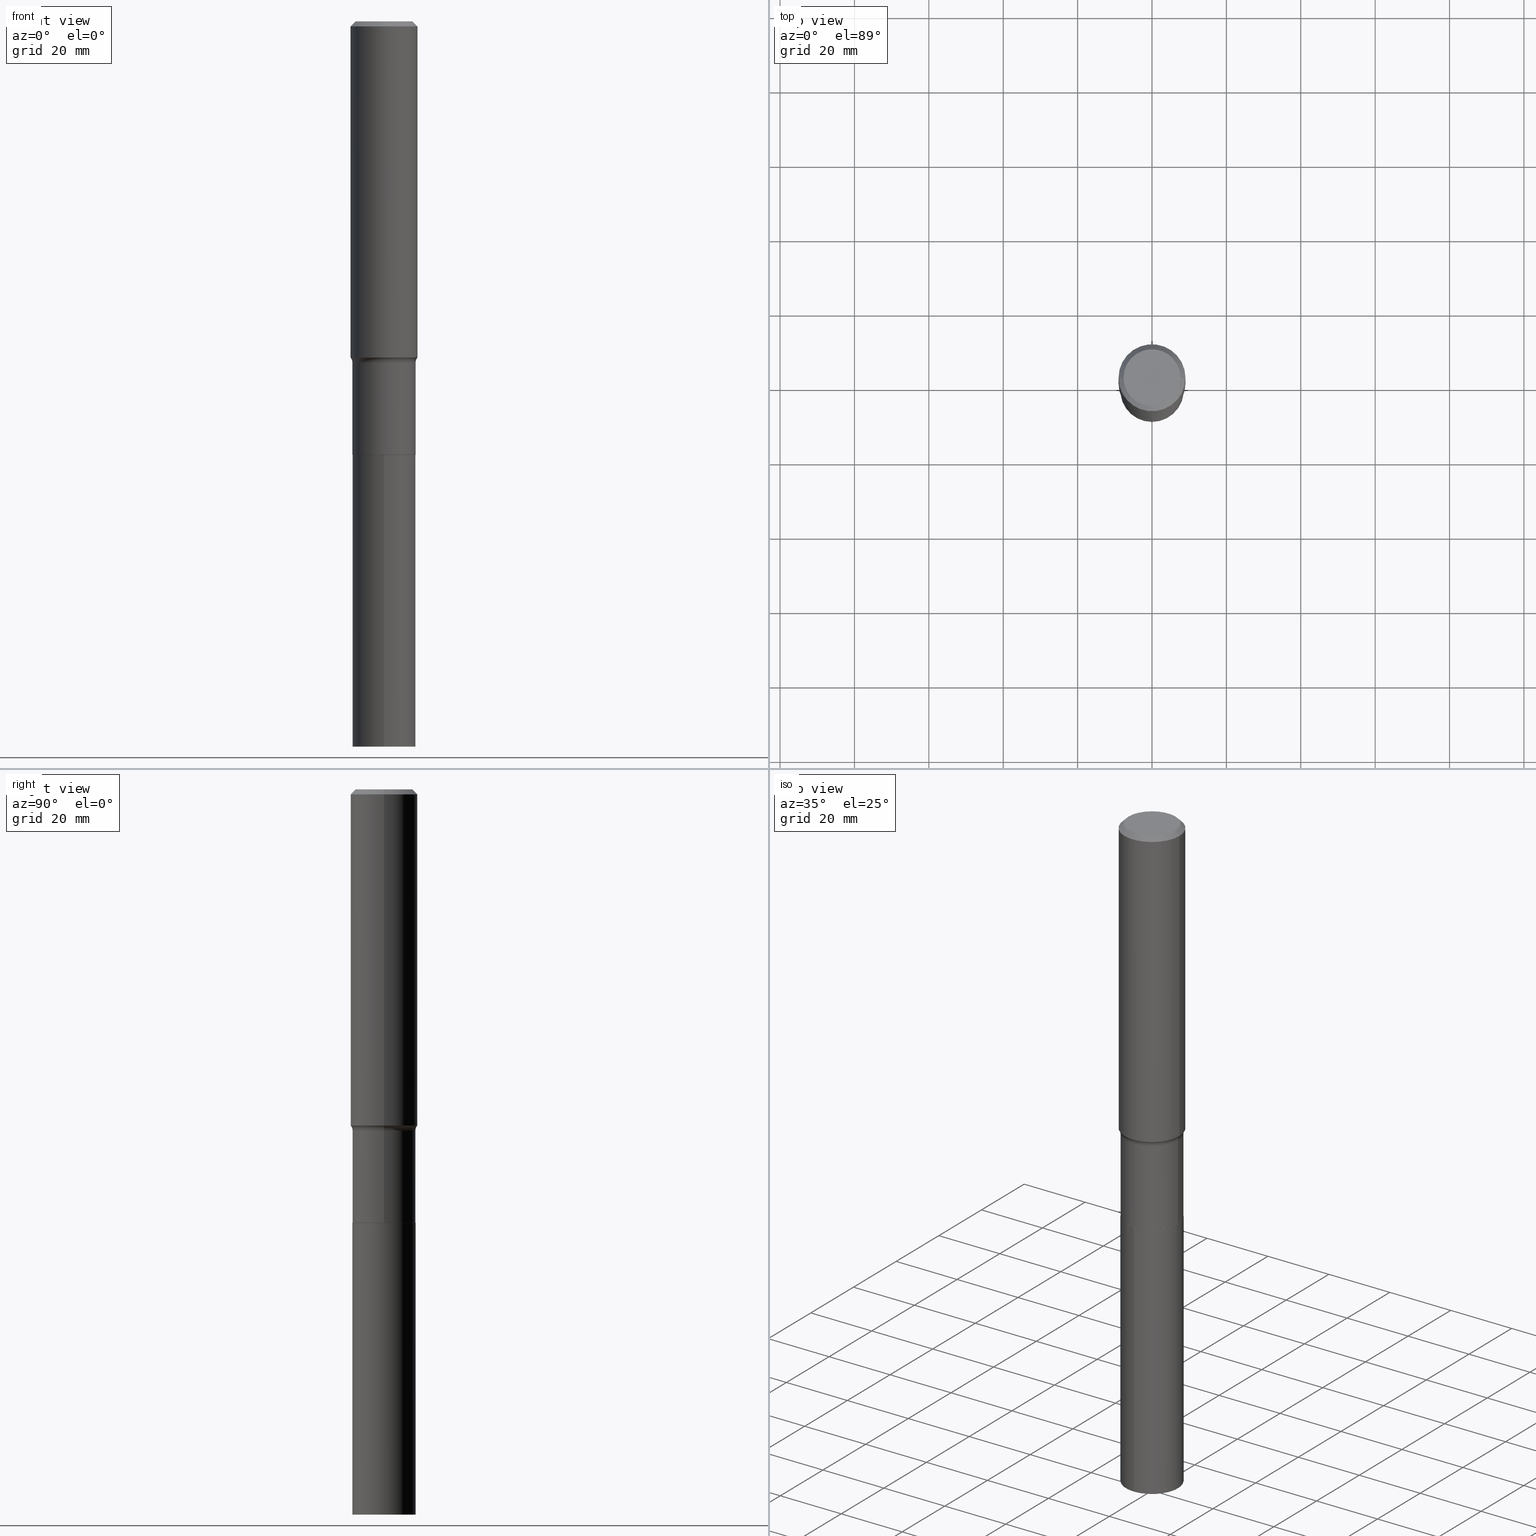
[diagram: canonical four-view strip — front | top / right | iso, engineering-drawing reading convention]
A machine part, canonical four-view strip (front | top / right | iso — engineering-drawing reading convention). The complete STEP part file that produces these views, byte-faithful:
ISO-10303-21;
HEADER;
FILE_DESCRIPTION (( 'STEP AP203' ),
    '1' );
FILE_NAME ('67919.STEP',
    '2024-04-19T17:05:45',
    ( '' ),
    ( '' ),
    'SwSTEP 2.0',
    'SolidWorks 2023',
    '' );
FILE_SCHEMA (( 'CONFIG_CONTROL_DESIGN' ));
ENDSEC;

DATA;
#1 = DIRECTION ( 'NONE',  ( 1.000000000000000000, -6.982962677686268288E-15, 0.000000000000000000 ) ) ;
#2 = EDGE_CURVE ( 'NONE', #334, #112, #97, .T. ) ;
#3 = CARTESIAN_POINT ( 'NONE',  ( 1.299827807207564022E-30, -1.855809618628616242E-16, -0.05315250000000037306 ) ) ;
#4 = AXIS2_PLACEMENT_3D ( 'NONE', #198, #269, #91 ) ;
#5 = AXIS2_PLACEMENT_3D ( 'NONE', #101, #180, #238 ) ;
#6 = PERSON_AND_ORGANIZATION ( #329, #51 ) ;
#7 = ORIENTED_EDGE ( 'NONE', *, *, #82, .F. ) ;
#8 = CARTESIAN_POINT ( 'NONE',  ( -5.014852121625167883E-47, 7.159879756154481060E-33, 2.050671065172242981E-18 ) ) ;
#9 = DATE_AND_TIME ( #194, #81 ) ;
#10 = CIRCLE ( 'NONE', #195, 0.3346500000000000585 ) ;
#11 =( CONVERSION_BASED_UNIT ( 'INCH', #305 ) LENGTH_UNIT ( ) NAMED_UNIT ( #140 ) );
#12 = AXIS2_PLACEMENT_3D ( 'NONE', #102, #242, #281 ) ;
#13 = EDGE_CURVE ( 'NONE', #107, #334, #457, .T. ) ;
#14 = ORIENTED_EDGE ( 'NONE', *, *, #379, .T. ) ;
#15 = APPROVAL_STATUS ( 'not_yet_approved' ) ;
#16 = EDGE_LOOP ( 'NONE', ( #224, #100, #86, #429 ) ) ;
#17 = CARTESIAN_POINT ( 'NONE',  ( 1.121785450773245711E-28, -1.601612319754127659E-14, -4.587199999999999278 ) ) ;
#18 = AXIS2_PLACEMENT_3D ( 'NONE', #225, #124, #113 ) ;
#19 = CARTESIAN_POINT ( 'NONE',  ( -0.3543500000000006644, -9.905675328687322554E-15, -3.558227098234926000 ) ) ;
#20 = DATE_TIME_ROLE ( 'creation_date' ) ;
#21 = CARTESIAN_POINT ( 'NONE',  ( 0.000000000000000000, 0.000000000000000000, 0.000000000000000000 ) ) ;
#22 = APPROVAL_ROLE ( '' ) ;
#23 = DIRECTION ( 'NONE',  ( 1.000000000000000000, -6.982962677686266711E-15, 4.876239486148337140E-29 ) ) ;
#24 = DIRECTION ( 'NONE',  ( 1.000000000000000000, -6.982962677686267499E-15, 0.000000000000000000 ) ) ;
#25 = DIRECTION ( 'NONE',  ( -2.445468806185136597E-29, 3.491481338843145583E-15, 1.000000000000000000 ) ) ;
#26 = EDGE_CURVE ( 'NONE', #300, #33, #145, .T. ) ;
#27 = APPLICATION_PROTOCOL_DEFINITION ( 'international standard', 'config_control_design', 1994, #332 ) ;
#28 = CARTESIAN_POINT ( 'NONE',  ( 0.3543499999999999983, -2.616598427373203868E-15, -0.05315250000000037306 ) ) ;
#29 = FACE_OUTER_BOUND ( 'NONE', #117, .T. ) ;
#30 = ORIENTED_EDGE ( 'NONE', *, *, #132, .F. ) ;
#31 = ADVANCED_FACE ( 'NONE', ( #380 ), #49, .F. ) ;
#32 = VECTOR ( 'NONE', #322, 39.37007874015748143 ) ;
#33 = VERTEX_POINT ( 'NONE', #99 ) ;
#34 = DIRECTION ( 'NONE',  ( -6.982962677686266711E-15, -1.000000000000000000, 3.265319580055895186E-15 ) ) ;
#35 = VERTEX_POINT ( 'NONE', #303 ) ;
#36 = CARTESIAN_POINT ( 'NONE',  ( -1.002970424325033577E-46, 1.431975951230896212E-32, 4.101342130344485961E-18 ) ) ;
#37 = ORIENTED_EDGE ( 'NONE', *, *, #430, .F. ) ;
#38 = ADVANCED_FACE ( 'NONE', ( #445 ), #236, .F. ) ;
#39 = ORIENTED_EDGE ( 'NONE', *, *, #13, .T. ) ;
#40 = CALENDAR_DATE ( 2024, 19, 4 ) ;
#41 = DIRECTION ( 'NONE',  ( 1.000000000000000000, -6.982962677686266711E-15, 4.876239486148337140E-29 ) ) ;
#42 = ORIENTED_EDGE ( 'NONE', *, *, #221, .T. ) ;
#43 = ADVANCED_FACE ( 'NONE', ( #200 ), #270, .T. ) ;
#44 = EDGE_LOOP ( 'NONE', ( #376, #348, #424, #50 ) ) ;
#45 = PRODUCT ( '67919', '67919', '', ( #460 ) ) ;
#46 = AXIS2_PLACEMENT_3D ( 'NONE', #106, #244, #393 ) ;
#47 = LOCAL_TIME ( 13, 5, 45.00000000000000000, #358 ) ;
#48 = PRODUCT_DEFINITION_SHAPE ( 'NONE', 'NONE',  #182 ) ;
#49 = PLANE ( 'NONE',  #134 ) ;
#50 = ORIENTED_EDGE ( 'NONE', *, *, #203, .F. ) ;
#51 = ORGANIZATION ( 'UNSPECIFIED', 'UNSPECIFIED', '' ) ;
#52 = EDGE_CURVE ( 'NONE', #147, #412, #312, .T. ) ;
#53 = AXIS2_PLACEMENT_3D ( 'NONE', #8, #411, #148 ) ;
#54 = LOCAL_TIME ( 13, 5, 45.00000000000000000, #232 ) ;
#55 = DIRECTION ( 'NONE',  ( -1.000000000000000000, 6.982962677686266711E-15, 0.000000000000000000 ) ) ;
#56 = ORIENTED_EDGE ( 'NONE', *, *, #247, .T. ) ;
#57 = SECURITY_CLASSIFICATION_LEVEL ( 'unclassified' ) ;
#58 = CARTESIAN_POINT ( 'NONE',  ( 0.3543500000000002759, -2.474412824838130666E-15, 1.727873240503291150E-29 ) ) ;
#59 = DIRECTION ( 'NONE',  ( -2.445468806185136597E-29, 3.491481338843145583E-15, 1.000000000000000000 ) ) ;
#60 = TOROIDAL_SURFACE ( 'NONE', #324, 0.4146499999999999631, 0.08000000000000027922 ) ;
#61 = CONICAL_SURFACE ( 'NONE', #326, 0.3341500000000000581, 0.7853981633973118326 ) ;
#62 = DESIGN_CONTEXT ( 'detailed design', #316, 'design' ) ;
#63 = CARTESIAN_POINT ( 'NONE',  ( -0.3543500000000002759, 2.517808184165916969E-15, -1.743024649231827187E-29 ) ) ;
#64 = EDGE_CURVE ( 'NONE', #412, #112, #354, .T. ) ;
#65 = LINE ( 'NONE', #28, #187 ) ;
#66 = CARTESIAN_POINT ( 'NONE',  ( 8.830098765373292000E-29, -1.260704081829483189E-14, -3.610800000000000232 ) ) ;
#67 = EDGE_CURVE ( 'NONE', #334, #188, #315, .T. ) ;
#68 = ORIENTED_EDGE ( 'NONE', *, *, #251, .T. ) ;
#69 = DIRECTION ( 'NONE',  ( -6.982962677686266711E-15, -1.000000000000000000, 3.265319580055895186E-15 ) ) ;
#70 = FACE_OUTER_BOUND ( 'NONE', #109, .T. ) ;
#71 = VECTOR ( 'NONE', #104, 39.37007874015748143 ) ;
#72 = CIRCLE ( 'NONE', #416, 0.3011975000000000069 ) ;
#73 = DIRECTION ( 'NONE',  ( -0.7071067811864509833, 7.493145998870005484E-15, 0.7071067811866440511 ) ) ;
#74 = CARTESIAN_POINT ( 'NONE',  ( 1.299827807207564022E-30, -1.855809618628616242E-16, -0.05315250000000037306 ) ) ;
#75 = ORIENTED_EDGE ( 'NONE', *, *, #149, .F. ) ;
#76 = APPROVAL ( #405, 'UNSPECIFIED' ) ;
#77 = DIRECTION ( 'NONE',  ( 7.105427357601001859E-15, 1.000000000000000000, -3.491481338843145583E-15 ) ) ;
#78 = CARTESIAN_POINT ( 'NONE',  ( 0.3346500000000000585, -1.835122591695956180E-14, -4.586699999999999555 ) ) ;
#79 = EDGE_LOOP ( 'NONE', ( #402, #185, #413, #371 ) ) ;
#80 = TOROIDAL_SURFACE ( 'NONE', #237, 0.4146499999999999631, 0.08000000000000027922 ) ;
#81 = LOCAL_TIME ( 13, 5, 45.00000000000000000, #343 ) ;
#82 = EDGE_CURVE ( 'NONE', #297, #35, #181, .T. ) ;
#83 = CARTESIAN_POINT ( 'NONE',  ( -2.336848460087597067E-15, -0.3346500000000160457, -4.587199999999998390 ) ) ;
#84 = PRODUCT_RELATED_PRODUCT_CATEGORY ( 'detail', '', ( #45 ) ) ;
#85 = CARTESIAN_POINT ( 'NONE',  ( 2.377831265221286917E-15, 0.3346499999999839603, -4.587200000000001054 ) ) ;
#86 = ORIENTED_EDGE ( 'NONE', *, *, #395, .F. ) ;
#87 = ORIENTED_EDGE ( 'NONE', *, *, #325, .F. ) ;
#88 = PERSON_AND_ORGANIZATION ( #329, #51 ) ;
#89 = AXIS2_PLACEMENT_3D ( 'NONE', #321, #461, #24 ) ;
#90 = CC_DESIGN_APPROVAL ( #76, ( #182 ) ) ;
#91 = DIRECTION ( 'NONE',  ( -6.982962677686266711E-15, -1.000000000000000000, 3.265319580055895186E-15 ) ) ;
#92 = EDGE_CURVE ( 'NONE', #184, #147, #386, .T. ) ;
#93 = PERSON_AND_ORGANIZATION_ROLE ( 'creator' ) ;
#94 = DIRECTION ( 'NONE',  ( -2.445011850154846230E-29, 3.492135725886842915E-15, 1.000000000000000000 ) ) ;
#95 =( NAMED_UNIT ( * ) PLANE_ANGLE_UNIT ( ) SI_UNIT ( $, .RADIAN. ) );
#96 = DIRECTION ( 'NONE',  ( -2.445468806185136597E-29, 3.491481338843145583E-15, 1.000000000000000000 ) ) ;
#97 = CIRCLE ( 'NONE', #308, 0.08000000000000030698 ) ;
#98 = ADVANCED_FACE ( 'NONE', ( #137 ), #202, .T. ) ;
#99 = CARTESIAN_POINT ( 'NONE',  ( 2.377831265221324783E-15, 0.3346499999999731911, -7.677200000000001801 ) ) ;
#100 = ORIENTED_EDGE ( 'NONE', *, *, #149, .T. ) ;
#101 = CARTESIAN_POINT ( 'NONE',  ( 0.000000000000000000, 0.000000000000000000, 0.000000000000000000 ) ) ;
#102 = CARTESIAN_POINT ( 'NONE',  ( 0.000000000000000000, 0.000000000000000000, 0.000000000000000000 ) ) ;
#103 = DIRECTION ( 'NONE',  ( -6.982962677686266711E-15, -1.000000000000000000, 3.265319580055895186E-15 ) ) ;
#104 = DIRECTION ( 'NONE',  ( 0.7071067811864509833, -2.468850131081245741E-15, 0.7071067811866440511 ) ) ;
#105 = APPROVAL ( #15, 'UNSPECIFIED' ) ;
#106 = CARTESIAN_POINT ( 'NONE',  ( 1.121785450773245711E-28, -1.601612319754127659E-14, -4.587199999999999278 ) ) ;
#107 = VERTEX_POINT ( 'NONE', #19 ) ;
#108 = LINE ( 'NONE', #143, #160 ) ;
#109 = EDGE_LOOP ( 'NONE', ( #229, #431 ) ) ;
#110 = APPROVAL_PERSON_ORGANIZATION ( #447, #105, #441 ) ;
#111 = CARTESIAN_POINT ( 'NONE',  ( -0.3543499999999999983, -3.786724053192132939E-15, -0.05315250000000037306 ) ) ;
#112 = VERTEX_POINT ( 'NONE', #397 ) ;
#113 = DIRECTION ( 'NONE',  ( 1.000000000000000000, -6.982962677686266711E-15, 0.000000000000000000 ) ) ;
#114 = ORIENTED_EDGE ( 'NONE', *, *, #307, .F. ) ;
#115 = DIRECTION ( 'NONE',  ( -2.445468806185136597E-29, 3.491481338843145583E-15, 1.000000000000000000 ) ) ;
#116 = VECTOR ( 'NONE', #172, 39.37007874015748143 ) ;
#117 = EDGE_LOOP ( 'NONE', ( #7, #367, #362, #114 ) ) ;
#118 = CC_DESIGN_PERSON_AND_ORGANIZATION_ASSIGNMENT ( #6, #153, ( #45 ) ) ;
#119 = PERSON_AND_ORGANIZATION ( #329, #51 ) ;
#120 = CARTESIAN_POINT ( 'NONE',  ( 1.121785450773245711E-28, -1.601612319754127659E-14, -4.587199999999999278 ) ) ;
#121 = CARTESIAN_POINT ( 'NONE',  ( 1.121785450773245711E-28, -1.601612319754127659E-14, -4.587199999999999278 ) ) ;
#122 = ORIENTED_EDGE ( 'NONE', *, *, #251, .F. ) ;
#123 = PERSON_AND_ORGANIZATION ( #329, #51 ) ;
#124 = DIRECTION ( 'NONE',  ( -2.445468806185136597E-29, 3.491481338843145583E-15, 1.000000000000000000 ) ) ;
#125 = DIRECTION ( 'NONE',  ( -6.982962677686266711E-15, -1.000000000000000000, 3.491481338843145583E-15 ) ) ;
#126 = VECTOR ( 'NONE', #73, 39.37007874015748143 ) ;
#127 = CALENDAR_DATE ( 2024, 19, 4 ) ;
#128 = VERTEX_POINT ( 'NONE', #111 ) ;
#129 = APPROVAL_DATE_TIME ( #266, #105 ) ;
#130 = DIRECTION ( 'NONE',  ( -2.445011850154846511E-29, 3.492135725886842915E-15, 1.000000000000000000 ) ) ;
#131 = CARTESIAN_POINT ( 'NONE',  ( 1.121785450773245711E-28, -1.601612319754127659E-14, -4.587199999999999278 ) ) ;
#132 = EDGE_CURVE ( 'NONE', #128, #188, #398, .T. ) ;
#133 = CALENDAR_DATE ( 2024, 19, 4 ) ;
#134 = AXIS2_PLACEMENT_3D ( 'NONE', #192, #94, #163 ) ;
#135 = VECTOR ( 'NONE', #407, 39.37007874015748143 ) ;
#136 = CARTESIAN_POINT ( 'NONE',  ( 0.3011975000000000069, -2.341481636528497322E-15, 4.101342130360026675E-18 ) ) ;
#137 = FACE_OUTER_BOUND ( 'NONE', #414, .T. ) ;
#138 = ORIENTED_EDGE ( 'NONE', *, *, #92, .T. ) ;
#139 = DIRECTION ( 'NONE',  ( -6.982962677686266711E-15, -1.000000000000000000, 3.265319580055895186E-15 ) ) ;
#140 = DIMENSIONAL_EXPONENTS ( 1.000000000000000000, 0.000000000000000000, 0.000000000000000000, 0.000000000000000000, 0.000000000000000000, 0.000000000000000000, 0.000000000000000000 ) ;
#141 = DIRECTION ( 'NONE',  ( -2.445468806185136597E-29, 3.491481338843145583E-15, 1.000000000000000000 ) ) ;
#142 = ADVANCED_FACE ( 'NONE', ( #444 ), #60, .F. ) ;
#143 = CARTESIAN_POINT ( 'NONE',  ( -0.3543499999999999983, 2.288831862975267218E-15, -0.05315250000000037306 ) ) ;
#144 = ORIENTED_EDGE ( 'NONE', *, *, #366, .F. ) ;
#145 = CIRCLE ( 'NONE', #4, 0.3346500000000000030 ) ;
#146 = EDGE_LOOP ( 'NONE', ( #400, #235, #365, #374 ) ) ;
#147 = VERTEX_POINT ( 'NONE', #279 ) ;
#148 = DIRECTION ( 'NONE',  ( -1.000000000000000000, 6.982962677686265922E-15, -4.876176775795935793E-29 ) ) ;
#149 = EDGE_CURVE ( 'NONE', #184, #297, #210, .T. ) ;
#150 = FACE_OUTER_BOUND ( 'NONE', #44, .T. ) ;
#151 = AXIS2_PLACEMENT_3D ( 'NONE', #131, #274, #103 ) ;
#152 = APPROVAL_PERSON_ORGANIZATION ( #119, #76, #155 ) ;
#153 = PERSON_AND_ORGANIZATION_ROLE ( 'design_owner' ) ;
#154 = CARTESIAN_POINT ( 'NONE',  ( 1.299827807207564022E-30, -1.855809618628616242E-16, -0.05315250000000037306 ) ) ;
#155 = APPROVAL_ROLE ( '' ) ;
#156 = DIRECTION ( 'NONE',  ( 1.000000000000000000, -6.982962677686257244E-15, 0.000000000000000000 ) ) ;
#157 = PERSON_AND_ORGANIZATION ( #329, #51 ) ;
#158 = ADVANCED_FACE ( 'NONE', ( #29 ), #183, .T. ) ;
#159 = DIRECTION ( 'NONE',  ( 1.000000000000000000, -6.982962677686267499E-15, 0.000000000000000000 ) ) ;
#160 = VECTOR ( 'NONE', #283, 39.37007874015748143 ) ;
#161 = UNCERTAINTY_MEASURE_WITH_UNIT (LENGTH_MEASURE( 1.000000000000000082E-05 ), #11, 'distance_accuracy_value', 'NONE');
#162 =( LENGTH_UNIT ( ) NAMED_UNIT ( * ) SI_UNIT ( $, .METRE. ) );
#163 = DIRECTION ( 'NONE',  ( -6.982962677686265922E-15, -1.000000000000000000, 3.492135725886842915E-15 ) ) ;
#164 = PERSON_AND_ORGANIZATION_ROLE ( 'creator' ) ;
#165 = ORIENTED_EDGE ( 'NONE', *, *, #311, .T. ) ;
#166 = VECTOR ( 'NONE', #174, 39.37007874015748143 ) ;
#167 = DIRECTION ( 'NONE',  ( 1.000000000000000000, -6.982962677686266711E-15, 4.876176775795935232E-29 ) ) ;
#168 = ADVANCED_FACE ( 'NONE', ( #364 ), #273, .T. ) ;
#169 = LINE ( 'NONE', #422, #189 ) ;
#170 = ORIENTED_EDGE ( 'NONE', *, *, #52, .T. ) ;
#171 = CC_DESIGN_DATE_AND_TIME_ASSIGNMENT ( #427, #20, ( #182 ) ) ;
#172 = DIRECTION ( 'NONE',  ( -2.445468806185136877E-29, 3.491481338843145188E-15, 1.000000000000000000 ) ) ;
#173 = EDGE_LOOP ( 'NONE', ( #368, #122 ) ) ;
#174 = DIRECTION ( 'NONE',  ( -2.445468806185136877E-29, 3.491481338843145188E-15, 1.000000000000000000 ) ) ;
#175 = AXIS2_PLACEMENT_3D ( 'NONE', #17, #449, #239 ) ;
#176 = CIRCLE ( 'NONE', #46, 0.3341500000000000581 ) ;
#177 = APPROVAL_PERSON_ORGANIZATION ( #207, #272, #22 ) ;
#178 = DIRECTION ( 'NONE',  ( 1.000000000000000000, -6.982962677686266711E-15, 4.876176775795935793E-29 ) ) ;
#179 = ORIENTED_EDGE ( 'NONE', *, *, #2, .T. ) ;
#180 = DIRECTION ( 'NONE',  ( -2.445468806185136597E-29, 3.491481338843145583E-15, 1.000000000000000000 ) ) ;
#181 = LINE ( 'NONE', #209, #32 ) ;
#182 = PRODUCT_DEFINITION ( 'UNKNOWN', '', #455, #62 ) ;
#183 = CYLINDRICAL_SURFACE ( 'NONE', #5, 0.3346500000000000030 ) ;
#184 = VERTEX_POINT ( 'NONE', #205 ) ;
#185 = ORIENTED_EDGE ( 'NONE', *, *, #260, .T. ) ;
#186 = DIRECTION ( 'NONE',  ( 1.000000000000000000, -6.982962677686260400E-15, 0.000000000000000000 ) ) ;
#187 = VECTOR ( 'NONE', #360, 39.37007874015748143 ) ;
#188 = VERTEX_POINT ( 'NONE', #246 ) ;
#189 = VECTOR ( 'NONE', #359, 39.37007874015748143 ) ;
#190 = DIRECTION ( 'NONE',  ( 2.445468806185136597E-29, -3.491481338843145583E-15, -1.000000000000000000 ) ) ;
#191 = FACE_OUTER_BOUND ( 'NONE', #259, .T. ) ;
#192 = CARTESIAN_POINT ( 'NONE',  ( 1.269105113841984692E-29, -5.187331201457171325E-14, -7.677200000000000024 ) ) ;
#193 = DIRECTION ( 'NONE',  ( -2.445468806185136597E-29, 3.491481338843145583E-15, 1.000000000000000000 ) ) ;
#194 = CALENDAR_DATE ( 2024, 19, 4 ) ;
#195 = AXIS2_PLACEMENT_3D ( 'NONE', #373, #294, #186 ) ;
#196 =( NAMED_UNIT ( * ) SI_UNIT ( $, .STERADIAN. ) SOLID_ANGLE_UNIT ( ) );
#197 = ADVANCED_FACE ( 'NONE', ( #216 ), #353, .T. ) ;
#198 = CARTESIAN_POINT ( 'NONE',  ( 1.877294112471093456E-28, -2.680682259053162671E-14, -7.677200000000000912 ) ) ;
#199 = CARTESIAN_POINT ( 'NONE',  ( 2.377831265221363042E-15, 0.3346499999999839603, -4.587200000000001054 ) ) ;
#200 = FACE_OUTER_BOUND ( 'NONE', #16, .T. ) ;
#201 = DIRECTION ( 'NONE',  ( -6.982962677686266711E-15, -1.000000000000000000, 3.265319580055895186E-15 ) ) ;
#202 = CYLINDRICAL_SURFACE ( 'NONE', #409, 0.3543500000000002759 ) ;
#203 = EDGE_CURVE ( 'NONE', #300, #252, #169, .T. ) ;
#204 = CONICAL_SURFACE ( 'NONE', #463, 0.3543499999999999983, 0.7853981633974447263 ) ;
#205 = CARTESIAN_POINT ( 'NONE',  ( -0.3341500000000000581, -1.363919541882479020E-14, -4.587199999999999278 ) ) ;
#206 = CARTESIAN_POINT ( 'NONE',  ( 0.3341500000000000581, -1.834948017629014266E-14, -4.587199999999999278 ) ) ;
#207 = PERSON_AND_ORGANIZATION ( #329, #51 ) ;
#208 = CARTESIAN_POINT ( 'NONE',  ( -1.002970424325033577E-46, 1.431975951230896212E-32, 4.101342130344485961E-18 ) ) ;
#209 = CARTESIAN_POINT ( 'NONE',  ( -0.3346500000000000030, 2.377831265221175293E-15, -1.646121627953804231E-29 ) ) ;
#210 = LINE ( 'NONE', #419, #126 ) ;
#211 = ORIENTED_EDGE ( 'NONE', *, *, #384, .F. ) ;
#212 = EDGE_CURVE ( 'NONE', #112, #35, #399, .T. ) ;
#213 = CARTESIAN_POINT ( 'NONE',  ( 0.3543500000000006644, -1.489789633769137492E-14, -3.558227098234926000 ) ) ;
#214 = CARTESIAN_POINT ( 'NONE',  ( 1.121785450773245711E-28, -1.601612319754127659E-14, -4.587199999999999278 ) ) ;
#215 = EDGE_LOOP ( 'NONE', ( #211, #408, #14, #144 ) ) ;
#216 = FACE_OUTER_BOUND ( 'NONE', #253, .T. ) ;
#217 = CLOSED_SHELL ( 'NONE', ( #43, #278, #98, #357, #197, #158, #142, #168, #415, #434, #372, #459 ) ) ;
#218 = AXIS2_PLACEMENT_3D ( 'NONE', #21, #394, #167 ) ;
#219 = EDGE_LOOP ( 'NONE', ( #439, #39, #299, #30 ) ) ;
#220 = ORIENTED_EDGE ( 'NONE', *, *, #64, .F. ) ;
#221 = EDGE_CURVE ( 'NONE', #107, #128, #391, .T. ) ;
#222 = CARTESIAN_POINT ( 'NONE',  ( 1.121785450773245711E-28, -1.601612319754127659E-14, -4.587199999999999278 ) ) ;
#223 =( GEOMETRIC_REPRESENTATION_CONTEXT ( 3 ) GLOBAL_UNCERTAINTY_ASSIGNED_CONTEXT ( ( #161 ) ) GLOBAL_UNIT_ASSIGNED_CONTEXT ( ( #11, #95, #196 ) ) REPRESENTATION_CONTEXT ( 'NONE', 'WORKASPACE' ) );
#224 = ORIENTED_EDGE ( 'NONE', *, *, #349, .T. ) ;
#225 = CARTESIAN_POINT ( 'NONE',  ( 1.299827807207564022E-30, -1.855809618628616242E-16, -0.05315250000000037306 ) ) ;
#226 = CARTESIAN_POINT ( 'NONE',  ( -0.4146499999999999631, -9.660775364465576730E-15, -3.610800000000000232 ) ) ;
#227 = COORDINATED_UNIVERSAL_TIME_OFFSET ( 5, 0, .BEHIND. ) ;
#228 = EDGE_CURVE ( 'NONE', #280, #252, #458, .T. ) ;
#229 = ORIENTED_EDGE ( 'NONE', *, *, #349, .F. ) ;
#230 = CC_DESIGN_DATE_AND_TIME_ASSIGNMENT ( #9, #442, ( #254 ) ) ;
#231 = CONICAL_SURFACE ( 'NONE', #257, 0.3543499999999999983, 0.7853981633974447263 ) ;
#232 = COORDINATED_UNIVERSAL_TIME_OFFSET ( 5, 0, .BEHIND. ) ;
#233 = CARTESIAN_POINT ( 'NONE',  ( -0.3346500000000000585, -1.193287787236216859E-14, -4.586699999999999555 ) ) ;
#234 = DIRECTION ( 'NONE',  ( 1.000000000000000000, -6.982962677686265922E-15, 4.876176775795935793E-29 ) ) ;
#235 = ORIENTED_EDGE ( 'NONE', *, *, #247, .F. ) ;
#236 = PLANE ( 'NONE',  #255 ) ;
#237 = AXIS2_PLACEMENT_3D ( 'NONE', #319, #141, #425 ) ;
#238 = DIRECTION ( 'NONE',  ( 1.000000000000000000, -6.982962677686266711E-15, 4.876176775795935232E-29 ) ) ;
#239 = DIRECTION ( 'NONE',  ( 1.000000000000000000, -6.982962677686268288E-15, 0.000000000000000000 ) ) ;
#240 = CC_DESIGN_PERSON_AND_ORGANIZATION_ASSIGNMENT ( #88, #301, ( #254 ) ) ;
#241 = DIRECTION ( 'NONE',  ( 1.000000000000000000, -6.982962677686266711E-15, 4.876176775795935793E-29 ) ) ;
#242 = DIRECTION ( 'NONE',  ( 0.000000000000000000, 0.000000000000000000, 1.000000000000000000 ) ) ;
#243 = CARTESIAN_POINT ( 'NONE',  ( 0.000000000000000000, 0.000000000000000000, 0.000000000000000000 ) ) ;
#244 = DIRECTION ( 'NONE',  ( -2.445468806185136597E-29, 3.491481338843145583E-15, 1.000000000000000000 ) ) ;
#245 = CARTESIAN_POINT ( 'NONE',  ( 0.000000000000000000, 0.000000000000000000, 0.000000000000000000 ) ) ;
#246 = CARTESIAN_POINT ( 'NONE',  ( 0.3543499999999999983, -2.659993786700990170E-15, -0.05315250000000037306 ) ) ;
#247 = EDGE_CURVE ( 'NONE', #275, #327, #72, .T. ) ;
#248 = DIRECTION ( 'NONE',  ( -2.445468806185136877E-29, 3.491481338843145188E-15, 1.000000000000000000 ) ) ;
#249 = AXIS2_PLACEMENT_3D ( 'NONE', #243, #59, #241 ) ;
#250 = LOCAL_TIME ( 13, 5, 45.00000000000000000, #227 ) ;
#251 = EDGE_CURVE ( 'NONE', #33, #300, #340, .T. ) ;
#252 = VERTEX_POINT ( 'NONE', #83 ) ;
#253 = EDGE_LOOP ( 'NONE', ( #423, #287, #465, #220 ) ) ;
#254 = SECURITY_CLASSIFICATION ( '', '', #57 ) ;
#255 = AXIS2_PLACEMENT_3D ( 'NONE', #382, #306, #446 ) ;
#256 = FACE_OUTER_BOUND ( 'NONE', #418, .T. ) ;
#257 = AXIS2_PLACEMENT_3D ( 'NONE', #3, #190, #55 ) ;
#258 = LOCAL_TIME ( 13, 5, 45.00000000000000000, #453 ) ;
#259 = EDGE_LOOP ( 'NONE', ( #56, #370 ) ) ;
#260 = EDGE_CURVE ( 'NONE', #107, #35, #271, .T. ) ;
#261 = DIRECTION ( 'NONE',  ( -2.445011850154846511E-29, 3.492135725886842915E-15, 1.000000000000000000 ) ) ;
#262 = APPLICATION_PROTOCOL_DEFINITION ( 'international standard', 'config_control_design', 1994, #316 ) ;
#263 = CC_DESIGN_PERSON_AND_ORGANIZATION_ASSIGNMENT ( #157, #383, ( #455 ) ) ;
#264 = CARTESIAN_POINT ( 'NONE',  ( 1.121663177332936431E-28, -1.601437745687185429E-14, -4.586699999999999555 ) ) ;
#265 = DIRECTION ( 'NONE',  ( -2.438088387897960049E-29, 3.491481338843145188E-15, 1.000000000000000000 ) ) ;
#266 = DATE_AND_TIME ( #127, #54 ) ;
#267 = CARTESIAN_POINT ( 'NONE',  ( -2.336848460087521336E-15, -0.3346500000000268704, -7.677200000000000024 ) ) ;
#268 = APPROVAL_DATE_TIME ( #337, #76 ) ;
#269 = DIRECTION ( 'NONE',  ( -2.445011850154846511E-29, 3.492135725886842915E-15, 1.000000000000000000 ) ) ;
#270 = CONICAL_SURFACE ( 'NONE', #175, 0.3341500000000000581, 0.7853981633973118326 ) ;
#271 = CIRCLE ( 'NONE', #426, 0.08000000000000030698 ) ;
#272 = APPROVAL ( #355, 'UNSPECIFIED' ) ;
#273 = CYLINDRICAL_SURFACE ( 'NONE', #249, 0.3543500000000002759 ) ;
#274 = DIRECTION ( 'NONE',  ( -2.445011850154846511E-29, 3.492135725886842915E-15, 1.000000000000000000 ) ) ;
#275 = VERTEX_POINT ( 'NONE', #466 ) ;
#276 = AXIS2_PLACEMENT_3D ( 'NONE', #417, #96, #159 ) ;
#277 = ORIENTED_EDGE ( 'NONE', *, *, #379, .F. ) ;
#278 = ADVANCED_FACE ( 'NONE', ( #336 ), #231, .T. ) ;
#279 = CARTESIAN_POINT ( 'NONE',  ( 0.3341500000000000581, -1.834948017629014266E-14, -4.587199999999999278 ) ) ;
#280 = VERTEX_POINT ( 'NONE', #199 ) ;
#281 = DIRECTION ( 'NONE',  ( 1.000000000000000000, 0.000000000000000000, 0.000000000000000000 ) ) ;
#282 = ORIENTED_EDGE ( 'NONE', *, *, #212, .T. ) ;
#283 = DIRECTION ( 'NONE',  ( -0.7071067811865450192, 2.468850131082230634E-15, -0.7071067811865500152 ) ) ;
#284 = CALENDAR_DATE ( 2024, 19, 4 ) ;
#285 = CIRCLE ( 'NONE', #302, 0.3011975000000000069 ) ;
#286 = DIRECTION ( 'NONE',  ( -2.445468806185136597E-29, 3.491481338843145583E-15, 1.000000000000000000 ) ) ;
#287 = ORIENTED_EDGE ( 'NONE', *, *, #82, .T. ) ;
#288 = PLANE ( 'NONE',  #318 ) ;
#289 = CC_DESIGN_PERSON_AND_ORGANIZATION_ASSIGNMENT ( #123, #164, ( #455 ) ) ;
#290 = EDGE_LOOP ( 'NONE', ( #331, #87, #179, #282 ) ) ;
#291 = MANIFOLD_SOLID_BREP ( 'Body-Move/Copy2[2]', #217 ) ;
#292 = FACE_OUTER_BOUND ( 'NONE', #328, .T. ) ;
#293 = ADVANCED_BREP_SHAPE_REPRESENTATION ( '67919', ( #450, #291, #12 ), #223 ) ;
#294 = DIRECTION ( 'NONE',  ( -2.445468806185136597E-29, 3.491481338843145583E-15, 1.000000000000000000 ) ) ;
#295 = AXIS2_PLACEMENT_3D ( 'NONE', #452, #130, #69 ) ;
#296 = CC_DESIGN_SECURITY_CLASSIFICATION ( #254, ( #455 ) ) ;
#297 = VERTEX_POINT ( 'NONE', #233 ) ;
#298 = DIRECTION ( 'NONE',  ( -1.000000000000000000, 7.105427357600995548E-15, 0.000000000000000000 ) ) ;
#299 = ORIENTED_EDGE ( 'NONE', *, *, #67, .T. ) ;
#300 = VERTEX_POINT ( 'NONE', #267 ) ;
#301 = PERSON_AND_ORGANIZATION_ROLE ( 'classification_officer' ) ;
#302 = AXIS2_PLACEMENT_3D ( 'NONE', #36, #330, #41 ) ;
#303 = CARTESIAN_POINT ( 'NONE',  ( -0.3346499999999999475, -1.193287787236216859E-14, -3.610800000000000232 ) ) ;
#304 = SHAPE_DEFINITION_REPRESENTATION ( #48, #293 ) ;
#305 = LENGTH_MEASURE_WITH_UNIT ( LENGTH_MEASURE( 0.02539999999999999897 ), #162 );
#306 = DIRECTION ( 'NONE',  ( 2.445011850154846230E-29, -3.492135725886842915E-15, -1.000000000000000000 ) ) ;
#307 = EDGE_CURVE ( 'NONE', #35, #112, #363, .T. ) ;
#308 = AXIS2_PLACEMENT_3D ( 'NONE', #342, #125, #156 ) ;
#309 = CIRCLE ( 'NONE', #18, 0.3543499999999999983 ) ;
#310 = CC_DESIGN_APPROVAL ( #272, ( #455 ) ) ;
#311 = EDGE_CURVE ( 'NONE', #252, #280, #381, .T. ) ;
#312 = LINE ( 'NONE', #206, #71 ) ;
#313 = DIRECTION ( 'NONE',  ( -2.445468806185136597E-29, 3.491481338843145583E-15, 1.000000000000000000 ) ) ;
#314 = DIRECTION ( 'NONE',  ( 1.000000000000000000, -6.982962677686262766E-15, 0.000000000000000000 ) ) ;
#315 = LINE ( 'NONE', #58, #435 ) ;
#316 = APPLICATION_CONTEXT ( 'configuration controlled 3d designs of mechanical parts and assemblies' ) ;
#317 = CARTESIAN_POINT ( 'NONE',  ( 1.877294112471093456E-28, -2.680682259053162671E-14, -7.677200000000000912 ) ) ;
#318 = AXIS2_PLACEMENT_3D ( 'NONE', #121, #265, #234 ) ;
#319 = CARTESIAN_POINT ( 'NONE',  ( 8.830098765373292000E-29, -1.260704081829483189E-14, -3.610800000000000232 ) ) ;
#320 = DIRECTION ( 'NONE',  ( 1.000000000000000000, -6.982962677686262766E-15, 0.000000000000000000 ) ) ;
#321 = CARTESIAN_POINT ( 'NONE',  ( 8.701533374056167494E-29, -1.242348351285324031E-14, -3.558227098234926000 ) ) ;
#322 = DIRECTION ( 'NONE',  ( -2.445468806185136877E-29, 3.491481338843145188E-15, 1.000000000000000000 ) ) ;
#323 = EDGE_CURVE ( 'NONE', #327, #188, #65, .T. ) ;
#324 = AXIS2_PLACEMENT_3D ( 'NONE', #389, #385, #420 ) ;
#325 = EDGE_CURVE ( 'NONE', #334, #107, #448, .T. ) ;
#326 = AXIS2_PLACEMENT_3D ( 'NONE', #432, #115, #1 ) ;
#327 = VERTEX_POINT ( 'NONE', #136 ) ;
#328 = EDGE_LOOP ( 'NONE', ( #75, #138, #170, #37 ) ) ;
#329 = PERSON ( 'UNSPECIFIED', 'UNSPECIFIED', 'UNSPECIFIED', ('UNSPECIFIED'), ('UNSPECIFIED'), ('UNSPECIFIED') ) ;
#330 = DIRECTION ( 'NONE',  ( -2.445468806185136597E-29, 3.491481338843145583E-15, 1.000000000000000000 ) ) ;
#331 = ORIENTED_EDGE ( 'NONE', *, *, #260, .F. ) ;
#332 = APPLICATION_CONTEXT ( 'configuration controlled 3d designs of mechanical parts and assemblies' ) ;
#333 = CYLINDRICAL_SURFACE ( 'NONE', #369, 0.3346500000000000030 ) ;
#334 = VERTEX_POINT ( 'NONE', #213 ) ;
#335 = CC_DESIGN_PERSON_AND_ORGANIZATION_ASSIGNMENT ( #443, #93, ( #182 ) ) ;
#336 = FACE_OUTER_BOUND ( 'NONE', #215, .T. ) ;
#337 = DATE_AND_TIME ( #40, #250 ) ;
#338 = AXIS2_PLACEMENT_3D ( 'NONE', #214, #25, #456 ) ;
#339 = DIRECTION ( 'NONE',  ( -2.445468806185136597E-29, 3.491481338843145583E-15, 1.000000000000000000 ) ) ;
#340 = CIRCLE ( 'NONE', #345, 0.3346500000000000030 ) ;
#341 = FACE_OUTER_BOUND ( 'NONE', #146, .T. ) ;
#342 = CARTESIAN_POINT ( 'NONE',  ( 0.4146499999999999631, -1.550252629259744263E-14, -3.610800000000000232 ) ) ;
#343 = COORDINATED_UNIVERSAL_TIME_OFFSET ( 5, 0, .BEHIND. ) ;
#344 = DIRECTION ( 'NONE',  ( 1.000000000000000000, -6.982962677686266711E-15, 0.000000000000000000 ) ) ;
#345 = AXIS2_PLACEMENT_3D ( 'NONE', #317, #454, #139 ) ;
#346 = APPROVAL_DATE_TIME ( #421, #272 ) ;
#347 = CARTESIAN_POINT ( 'NONE',  ( 8.830098765373292000E-29, -1.260704081829483189E-14, -3.610800000000000232 ) ) ;
#348 = ORIENTED_EDGE ( 'NONE', *, *, #388, .T. ) ;
#349 = EDGE_CURVE ( 'NONE', #147, #184, #176, .T. ) ;
#350 = CLOSED_SHELL ( 'NONE', ( #464, #31, #451, #38 ) ) ;
#351 = AXIS2_PLACEMENT_3D ( 'NONE', #264, #339, #401 ) ;
#352 = CC_DESIGN_APPROVAL ( #105, ( #254 ) ) ;
#353 = CYLINDRICAL_SURFACE ( 'NONE', #218, 0.3346500000000000030 ) ;
#354 = LINE ( 'NONE', #390, #116 ) ;
#355 = APPROVAL_STATUS ( 'not_yet_approved' ) ;
#356 = DIRECTION ( 'NONE',  ( -2.445468806185136597E-29, 3.491481338843145583E-15, 1.000000000000000000 ) ) ;
#357 = ADVANCED_FACE ( 'NONE', ( #396 ), #80, .F. ) ;
#358 = COORDINATED_UNIVERSAL_TIME_OFFSET ( 5, 0, .BEHIND. ) ;
#359 = DIRECTION ( 'NONE',  ( -2.445011850154846511E-29, 3.492135725886842915E-15, 1.000000000000000000 ) ) ;
#360 = DIRECTION ( 'NONE',  ( 0.7071067811865450192, -7.319954787623246579E-15, -0.7071067811865500152 ) ) ;
#361 = DIRECTION ( 'NONE',  ( -2.445468806185136597E-29, 3.491481338843145583E-15, 1.000000000000000000 ) ) ;
#362 = ORIENTED_EDGE ( 'NONE', *, *, #64, .T. ) ;
#363 = CIRCLE ( 'NONE', #410, 0.3346499999999999475 ) ;
#364 = FACE_OUTER_BOUND ( 'NONE', #219, .T. ) ;
#365 = ORIENTED_EDGE ( 'NONE', *, *, #366, .T. ) ;
#366 = EDGE_CURVE ( 'NONE', #275, #128, #108, .T. ) ;
#367 = ORIENTED_EDGE ( 'NONE', *, *, #430, .T. ) ;
#368 = ORIENTED_EDGE ( 'NONE', *, *, #26, .F. ) ;
#369 = AXIS2_PLACEMENT_3D ( 'NONE', #222, #404, #34 ) ;
#370 = ORIENTED_EDGE ( 'NONE', *, *, #384, .T. ) ;
#371 = ORIENTED_EDGE ( 'NONE', *, *, #2, .F. ) ;
#372 = ADVANCED_FACE ( 'NONE', ( #70 ), #288, .F. ) ;
#373 = CARTESIAN_POINT ( 'NONE',  ( 1.121663177332936431E-28, -1.601437745687185429E-14, -4.586699999999999555 ) ) ;
#374 = ORIENTED_EDGE ( 'NONE', *, *, #132, .T. ) ;
#375 = LINE ( 'NONE', #85, #135 ) ;
#376 = ORIENTED_EDGE ( 'NONE', *, *, #26, .T. ) ;
#377 = DIRECTION ( 'NONE',  ( -1.000000000000000000, 6.982962677686266711E-15, 0.000000000000000000 ) ) ;
#378 = ORIENTED_EDGE ( 'NONE', *, *, #388, .F. ) ;
#379 = EDGE_CURVE ( 'NONE', #188, #128, #309, .T. ) ;
#380 = FACE_OUTER_BOUND ( 'NONE', #173, .T. ) ;
#381 = CIRCLE ( 'NONE', #151, 0.3346500000000000030 ) ;
#382 = CARTESIAN_POINT ( 'NONE',  ( 1.121785450773245711E-28, -1.601612319754127659E-14, -4.587199999999999278 ) ) ;
#383 = PERSON_AND_ORGANIZATION_ROLE ( 'design_supplier' ) ;
#384 = EDGE_CURVE ( 'NONE', #327, #275, #285, .T. ) ;
#385 = DIRECTION ( 'NONE',  ( -2.445468806185136597E-29, 3.491481338843145583E-15, 1.000000000000000000 ) ) ;
#386 = CIRCLE ( 'NONE', #338, 0.3341500000000000581 ) ;
#387 = AXIS2_PLACEMENT_3D ( 'NONE', #120, #261, #201 ) ;
#388 = EDGE_CURVE ( 'NONE', #33, #280, #375, .T. ) ;
#389 = CARTESIAN_POINT ( 'NONE',  ( 8.830098765373292000E-29, -1.260704081829483189E-14, -3.610800000000000232 ) ) ;
#390 = CARTESIAN_POINT ( 'NONE',  ( 0.3346500000000000030, -2.336848460087709085E-15, 1.631812558020109799E-29 ) ) ;
#391 = LINE ( 'NONE', #63, #166 ) ;
#392 = ORIENTED_EDGE ( 'NONE', *, *, #228, .T. ) ;
#393 = DIRECTION ( 'NONE',  ( 1.000000000000000000, -6.982962677686268288E-15, 0.000000000000000000 ) ) ;
#394 = DIRECTION ( 'NONE',  ( -2.445468806185136597E-29, 3.491481338843145583E-15, 1.000000000000000000 ) ) ;
#395 = EDGE_CURVE ( 'NONE', #412, #297, #403, .T. ) ;
#396 = FACE_OUTER_BOUND ( 'NONE', #79, .T. ) ;
#397 = CARTESIAN_POINT ( 'NONE',  ( 0.3346499999999999475, -1.494388927838253940E-14, -3.610800000000000232 ) ) ;
#398 = CIRCLE ( 'NONE', #462, 0.3543499999999999983 ) ;
#399 = CIRCLE ( 'NONE', #436, 0.3346499999999999475 ) ;
#400 = ORIENTED_EDGE ( 'NONE', *, *, #323, .F. ) ;
#401 = DIRECTION ( 'NONE',  ( 1.000000000000000000, -6.982962677686260400E-15, 0.000000000000000000 ) ) ;
#402 = ORIENTED_EDGE ( 'NONE', *, *, #13, .F. ) ;
#403 = CIRCLE ( 'NONE', #351, 0.3346500000000000585 ) ;
#404 = DIRECTION ( 'NONE',  ( -2.445011850154846511E-29, 3.492135725886842915E-15, 1.000000000000000000 ) ) ;
#405 = APPROVAL_STATUS ( 'not_yet_approved' ) ;
#406 = DIRECTION ( 'NONE',  ( 2.445468806185136597E-29, -3.491481338843145583E-15, -1.000000000000000000 ) ) ;
#407 = DIRECTION ( 'NONE',  ( -2.445011850154846511E-29, 3.492135725886842915E-15, 1.000000000000000000 ) ) ;
#408 = ORIENTED_EDGE ( 'NONE', *, *, #323, .T. ) ;
#409 = AXIS2_PLACEMENT_3D ( 'NONE', #245, #361, #178 ) ;
#410 = AXIS2_PLACEMENT_3D ( 'NONE', #347, #286, #314 ) ;
#411 = DIRECTION ( 'NONE',  ( 2.438088387897960049E-29, -3.491481338843145188E-15, -1.000000000000000000 ) ) ;
#412 = VERTEX_POINT ( 'NONE', #78 ) ;
#413 = ORIENTED_EDGE ( 'NONE', *, *, #307, .T. ) ;
#414 = EDGE_LOOP ( 'NONE', ( #440, #42, #277, #468 ) ) ;
#415 = ADVANCED_FACE ( 'NONE', ( #341 ), #204, .T. ) ;
#416 = AXIS2_PLACEMENT_3D ( 'NONE', #208, #356, #23 ) ;
#417 = CARTESIAN_POINT ( 'NONE',  ( 8.701533374056167494E-29, -1.242348351285324031E-14, -3.558227098234926000 ) ) ;
#418 = EDGE_LOOP ( 'NONE', ( #378, #68, #433, #438 ) ) ;
#419 = CARTESIAN_POINT ( 'NONE',  ( -0.3341500000000000581, -1.364184464599890219E-14, -4.587199999999999278 ) ) ;
#420 = DIRECTION ( 'NONE',  ( 1.000000000000000000, -6.982962677686265133E-15, 4.883557194083112340E-29 ) ) ;
#421 = DATE_AND_TIME ( #133, #258 ) ;
#422 = CARTESIAN_POINT ( 'NONE',  ( -2.336848460087597067E-15, -0.3346500000000160457, -4.587199999999998390 ) ) ;
#423 = ORIENTED_EDGE ( 'NONE', *, *, #395, .T. ) ;
#424 = ORIENTED_EDGE ( 'NONE', *, *, #311, .F. ) ;
#425 = DIRECTION ( 'NONE',  ( 1.000000000000000000, -6.982962677686265133E-15, 4.883557194083112340E-29 ) ) ;
#426 = AXIS2_PLACEMENT_3D ( 'NONE', #226, #77, #298 ) ;
#427 = DATE_AND_TIME ( #284, #47 ) ;
#428 = EDGE_LOOP ( 'NONE', ( #165, #392 ) ) ;
#429 = ORIENTED_EDGE ( 'NONE', *, *, #52, .F. ) ;
#430 = EDGE_CURVE ( 'NONE', #297, #412, #10, .T. ) ;
#431 = ORIENTED_EDGE ( 'NONE', *, *, #92, .F. ) ;
#432 = CARTESIAN_POINT ( 'NONE',  ( 1.121785450773245711E-28, -1.601612319754127659E-14, -4.587199999999999278 ) ) ;
#433 = ORIENTED_EDGE ( 'NONE', *, *, #203, .T. ) ;
#434 = ADVANCED_FACE ( 'NONE', ( #191 ), #467, .F. ) ;
#435 = VECTOR ( 'NONE', #248, 39.37007874015748143 ) ;
#436 = AXIS2_PLACEMENT_3D ( 'NONE', #66, #313, #320 ) ;
#437 = CYLINDRICAL_SURFACE ( 'NONE', #387, 0.3346500000000000030 ) ;
#438 = ORIENTED_EDGE ( 'NONE', *, *, #228, .F. ) ;
#439 = ORIENTED_EDGE ( 'NONE', *, *, #221, .F. ) ;
#440 = ORIENTED_EDGE ( 'NONE', *, *, #325, .T. ) ;
#441 = APPROVAL_ROLE ( '' ) ;
#442 = DATE_TIME_ROLE ( 'classification_date' ) ;
#443 = PERSON_AND_ORGANIZATION ( #329, #51 ) ;
#444 = FACE_OUTER_BOUND ( 'NONE', #290, .T. ) ;
#445 = FACE_OUTER_BOUND ( 'NONE', #428, .T. ) ;
#446 = DIRECTION ( 'NONE',  ( 6.982962677686265922E-15, 1.000000000000000000, -3.492135725886842915E-15 ) ) ;
#447 = PERSON_AND_ORGANIZATION ( #329, #51 ) ;
#448 = CIRCLE ( 'NONE', #89, 0.3543500000000004979 ) ;
#449 = DIRECTION ( 'NONE',  ( -2.445468806185136597E-29, 3.491481338843145583E-15, 1.000000000000000000 ) ) ;
#450 = MANIFOLD_SOLID_BREP ( 'Body-Move/Copy2[1]', #350 ) ;
#451 = ADVANCED_FACE ( 'NONE', ( #256 ), #333, .T. ) ;
#452 = CARTESIAN_POINT ( 'NONE',  ( 1.121785450773245711E-28, -1.601612319754127659E-14, -4.587199999999999278 ) ) ;
#453 = COORDINATED_UNIVERSAL_TIME_OFFSET ( 5, 0, .BEHIND. ) ;
#454 = DIRECTION ( 'NONE',  ( -2.445011850154846511E-29, 3.492135725886842915E-15, 1.000000000000000000 ) ) ;
#455 = PRODUCT_DEFINITION_FORMATION_WITH_SPECIFIED_SOURCE ( 'ANY', '', #45, .NOT_KNOWN. ) ;
#456 = DIRECTION ( 'NONE',  ( 1.000000000000000000, -6.982962677686268288E-15, 0.000000000000000000 ) ) ;
#457 = CIRCLE ( 'NONE', #276, 0.3543500000000004979 ) ;
#458 = CIRCLE ( 'NONE', #295, 0.3346500000000000030 ) ;
#459 = ADVANCED_FACE ( 'NONE', ( #292 ), #61, .T. ) ;
#460 = MECHANICAL_CONTEXT ( 'NONE', #332, 'mechanical' ) ;
#461 = DIRECTION ( 'NONE',  ( -2.445468806185136597E-29, 3.491481338843145583E-15, 1.000000000000000000 ) ) ;
#462 = AXIS2_PLACEMENT_3D ( 'NONE', #74, #193, #344 ) ;
#463 = AXIS2_PLACEMENT_3D ( 'NONE', #154, #406, #377 ) ;
#464 = ADVANCED_FACE ( 'NONE', ( #150 ), #437, .T. ) ;
#465 = ORIENTED_EDGE ( 'NONE', *, *, #212, .F. ) ;
#466 = CARTESIAN_POINT ( 'NONE',  ( -0.3011975000000000069, 2.196041382043838255E-15, 4.101342130329452923E-18 ) ) ;
#467 = PLANE ( 'NONE',  #53 ) ;
#468 = ORIENTED_EDGE ( 'NONE', *, *, #67, .F. ) ;
ENDSEC;
END-ISO-10303-21;
